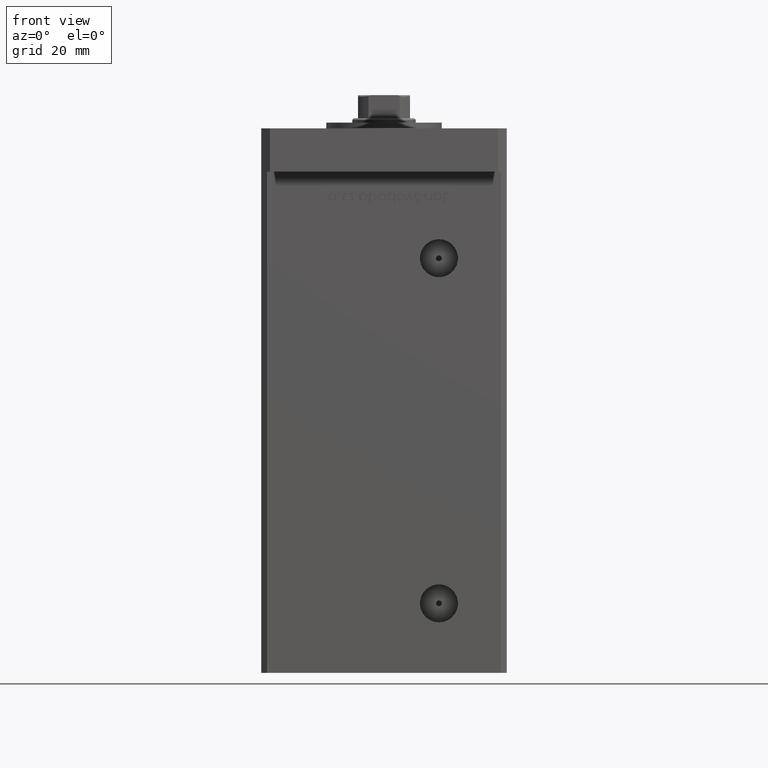
[diagram: clean part render]
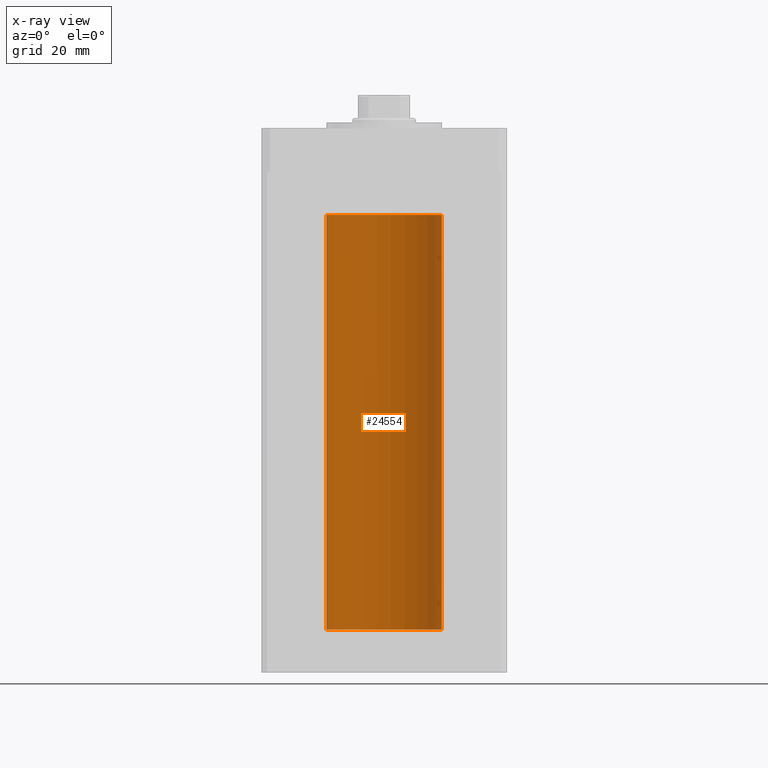
[diagram: x-ray — body ghosted, one internal face saturated and labeled with its STEP entity id]
A machine part, front view, then the same camera in x-ray: the body is ghosted and one INTERNAL B-rep face — a face not visible from any outside direction — is saturated and labeled: STEP entity #24554.
In plain terms, the highlighted cylindrical surface (partial cylindrical patch) has radius 20 mm, axis along (-0, -0, -1).
Its self-contained STEP definition (entity closure, byte-faithful):
#1603 = DIRECTION ( 'NONE',  ( -0.000000000000000000, 0.000000000000000000, 1.000000000000000000 ) ) ;
#2160 = EDGE_CURVE ( 'NONE', #42879, #16569, #42411, .T. ) ;
#4091 = CARTESIAN_POINT ( 'NONE',  ( -20.00000000000000000, 0.000000000000000000, 143.5000000000000000 ) ) ;
#4302 = CARTESIAN_POINT ( 'NONE',  ( 20.00000000000000000, 2.449293598294706513E-15, 143.5000000000000000 ) ) ;
#5584 = EDGE_CURVE ( 'NONE', #42879, #30731, #50252, .T. ) ;
#6811 = EDGE_LOOP ( 'NONE', ( #37475, #30462, #34075, #16936 ) ) ;
#7909 = LINE ( 'NONE', #4091, #14907 ) ;
#12062 = VECTOR ( 'NONE', #42650, 1000.000000000000000 ) ;
#12507 = DIRECTION ( 'NONE',  ( -0.000000000000000000, -0.000000000000000000, -1.000000000000000000 ) ) ;
#13347 = CARTESIAN_POINT ( 'NONE',  ( 20.00000000000000000, 2.449293598294706513E-15, 143.5000000000000000 ) ) ;
#13777 = CARTESIAN_POINT ( 'NONE',  ( -20.00000000000000000, 0.000000000000000000, 0.000000000000000000 ) ) ;
#14907 = VECTOR ( 'NONE', #12507, 1000.000000000000000 ) ;
#16091 = CARTESIAN_POINT ( 'NONE',  ( 0.000000000000000000, 0.000000000000000000, 143.5000000000000000 ) ) ;
#16569 = VERTEX_POINT ( 'NONE', #16581 ) ;
#16581 = CARTESIAN_POINT ( 'NONE',  ( -20.00000000000000000, 0.000000000000000000, 143.5000000000000000 ) ) ;
#16936 = ORIENTED_EDGE ( 'NONE', *, *, #43785, .F. ) ;
#19900 = CYLINDRICAL_SURFACE ( 'NONE', #42935, 20.00000000000000000 ) ;
#20788 = AXIS2_PLACEMENT_3D ( 'NONE', #50182, #1603, #21694 ) ;
#21694 = DIRECTION ( 'NONE',  ( 1.000000000000000000, 0.000000000000000000, 0.000000000000000000 ) ) ;
#24554 = ADVANCED_FACE ( 'NONE', ( #32908 ), #19900, .F. ) ;
#25088 = VERTEX_POINT ( 'NONE', #13777 ) ;
#26998 = AXIS2_PLACEMENT_3D ( 'NONE', #43653, #48544, #39593 ) ;
#28572 = DIRECTION ( 'NONE',  ( -1.000000000000000000, 0.000000000000000000, 0.000000000000000000 ) ) ;
#30462 = ORIENTED_EDGE ( 'NONE', *, *, #2160, .T. ) ;
#30731 = VERTEX_POINT ( 'NONE', #52706 ) ;
#32908 = FACE_OUTER_BOUND ( 'NONE', #6811, .T. ) ;
#34075 = ORIENTED_EDGE ( 'NONE', *, *, #45573, .T. ) ;
#37243 = DIRECTION ( 'NONE',  ( -0.000000000000000000, -0.000000000000000000, -1.000000000000000000 ) ) ;
#37475 = ORIENTED_EDGE ( 'NONE', *, *, #5584, .F. ) ;
#39593 = DIRECTION ( 'NONE',  ( 1.000000000000000000, 0.000000000000000000, 0.000000000000000000 ) ) ;
#42411 = CIRCLE ( 'NONE', #20788, 20.00000000000000000 ) ;
#42650 = DIRECTION ( 'NONE',  ( -0.000000000000000000, -0.000000000000000000, -1.000000000000000000 ) ) ;
#42879 = VERTEX_POINT ( 'NONE', #4302 ) ;
#42935 = AXIS2_PLACEMENT_3D ( 'NONE', #16091, #37243, #28572 ) ;
#43653 = CARTESIAN_POINT ( 'NONE',  ( 0.000000000000000000, 0.000000000000000000, 0.000000000000000000 ) ) ;
#43785 = EDGE_CURVE ( 'NONE', #30731, #25088, #46942, .T. ) ;
#45573 = EDGE_CURVE ( 'NONE', #16569, #25088, #7909, .T. ) ;
#46942 = CIRCLE ( 'NONE', #26998, 20.00000000000000000 ) ;
#48544 = DIRECTION ( 'NONE',  ( -0.000000000000000000, 0.000000000000000000, 1.000000000000000000 ) ) ;
#50182 = CARTESIAN_POINT ( 'NONE',  ( 0.000000000000000000, 0.000000000000000000, 143.5000000000000000 ) ) ;
#50252 = LINE ( 'NONE', #13347, #12062 ) ;
#52706 = CARTESIAN_POINT ( 'NONE',  ( 20.00000000000000000, 2.449293598294706513E-15, 0.000000000000000000 ) ) ;